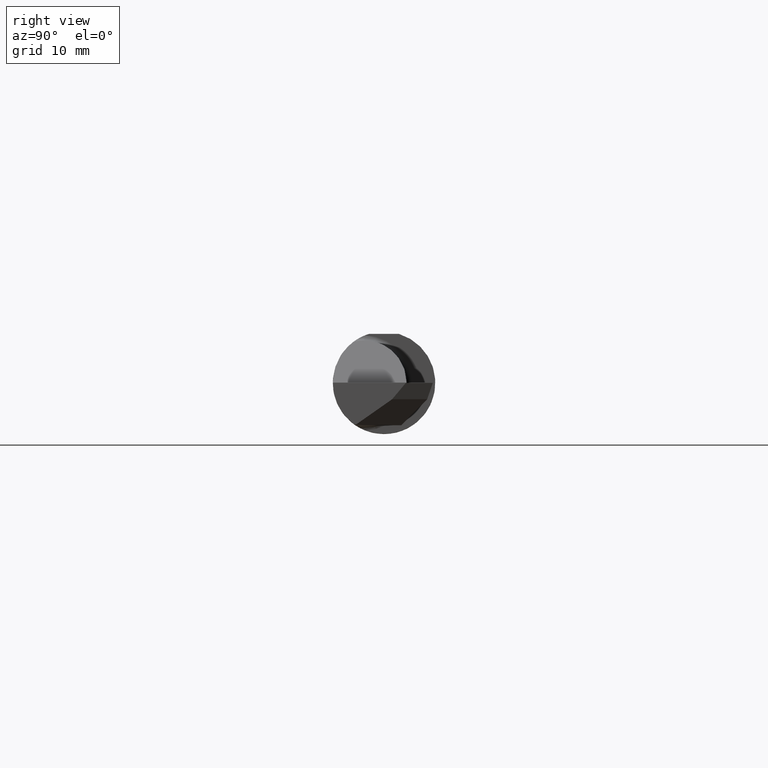
[diagram: clean part render]
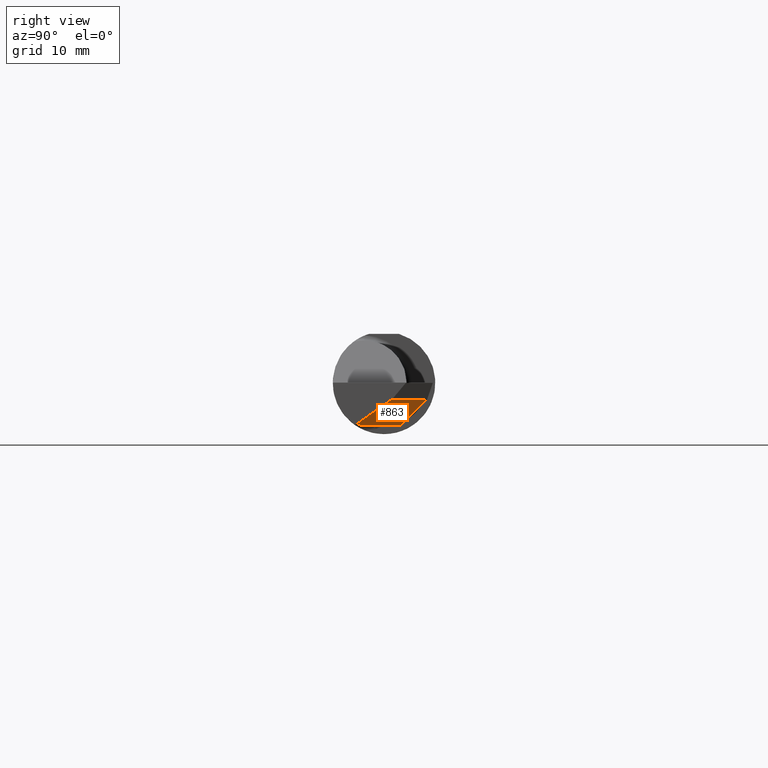
[diagram: same view with one face highlighted and labeled with its STEP entity id]
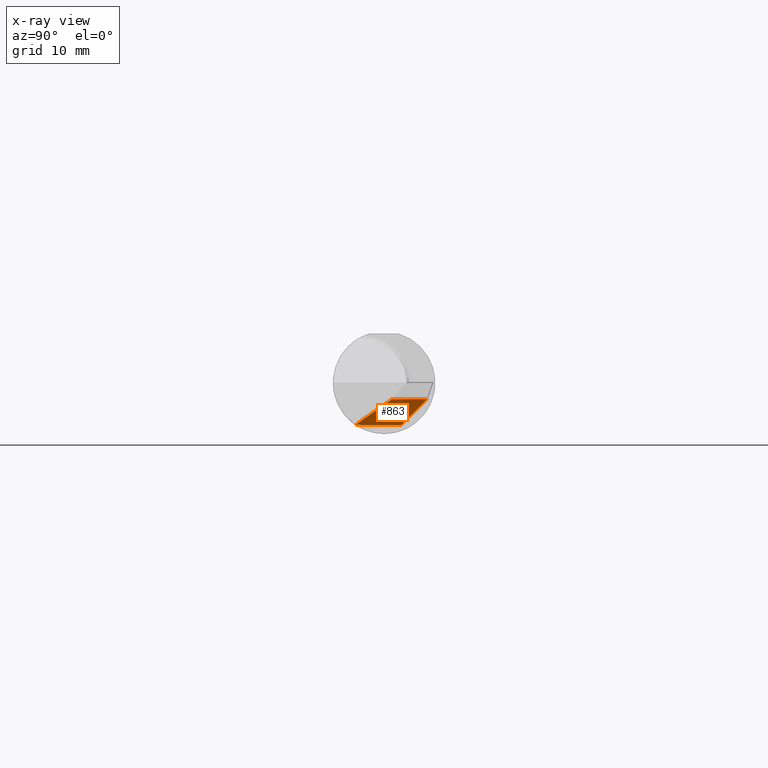
[diagram: x-ray of the same camera — body ghosted, the highlighted face saturated]
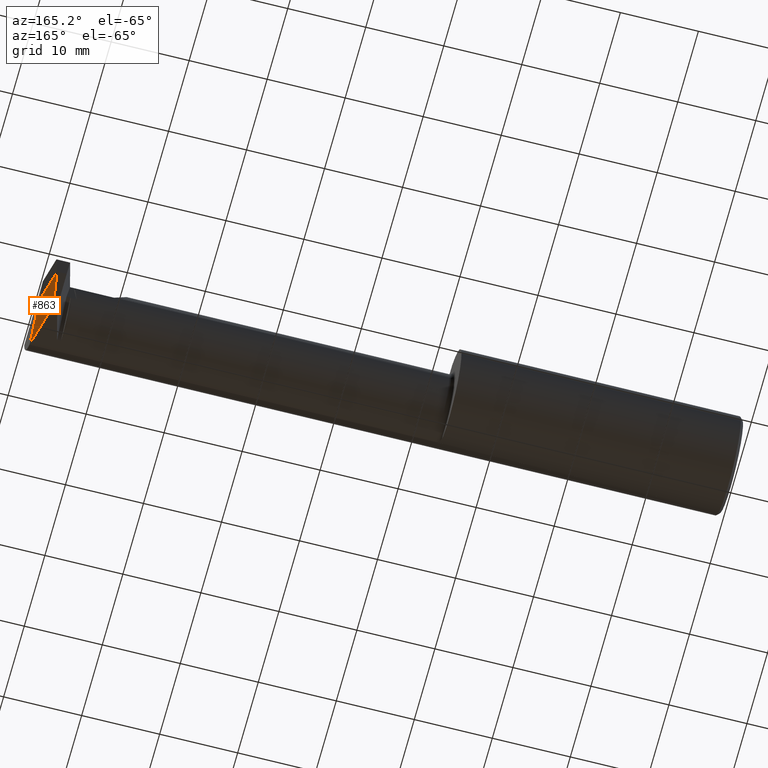
[diagram: same view with one face highlighted and labeled with its STEP entity id]
A machine part, right view. The second image highlights one B-rep face of the part: STEP entity #863.
The next image is the same camera in x-ray: the body ghosted, the highlighted face saturated — about 0% of this face is hidden behind the body in this view.
A second angle (auxiliary view) of the same face is appended — the face is thin or edge-on in the first view.
In plain terms, the highlighted planar face has unit normal (0.9116, 0.2358, -0.3367).
Its self-contained STEP definition (entity closure, byte-faithful):
#1 = CARTESIAN_POINT ( 'NONE',  ( 3.435081469452306191, 0.8665721776455815872, 0.3232974061439807811 ) ) ;
#10 = ORIENTED_EDGE ( 'NONE', *, *, #611, .F. ) ;
#28 = CARTESIAN_POINT ( 'NONE',  ( 3.500000000000000000, -0.1363579360798589379, -0.2031947907469819348 ) ) ;
#38 = CARTESIAN_POINT ( 'NONE',  ( 3.488377121087911537, -0.09685000000000003328, -0.2069999999999999341 ) ) ;
#49 = DIRECTION ( 'NONE',  ( -0.000000000000000000, 0.8191520442889890230, 0.5735764363510500452 ) ) ;
#63 = CARTESIAN_POINT ( 'NONE',  ( 3.488377121087911537, -0.09685000000000003328, -0.2069999999999999341 ) ) ;
#124 =( BOUNDED_CURVE ( )  B_SPLINE_CURVE ( 3, ( #38, #688, #526, #28 ),
 .UNSPECIFIED., .F., .F. ) 
 B_SPLINE_CURVE_WITH_KNOTS ( ( 4, 4 ),
 ( 0.6108652381980200774, 0.8029030024378224217 ),
 .UNSPECIFIED. ) 
 CURVE ( )  GEOMETRIC_REPRESENTATION_ITEM ( )  RATIONAL_B_SPLINE_CURVE ( ( 1.000000000000000000, 0.9969291518527050311, 0.9969291518527050311, 1.000000000000000000 ) ) 
 REPRESENTATION_ITEM ( '' )  );
#127 = LINE ( 'NONE', #776, #504 ) ;
#131 = CARTESIAN_POINT ( 'NONE',  ( 3.463839195668919402, 0.2834708276858401432, -0.007132963250969018114 ) ) ;
#136 = DIRECTION ( 'NONE',  ( -0.3464677099351670120, 0.000000000000000000, -0.9380618987957461963 ) ) ;
#154 = EDGE_CURVE ( 'NONE', #738, #530, #127, .T. ) ;
#201 = FACE_OUTER_BOUND ( 'NONE', #888, .T. ) ;
#209 = DIRECTION ( 'NONE',  ( -0.2503800040544218453, 0.9681476403781128504, 7.367790809985756574E-14 ) ) ;
#248 = VECTOR ( 'NONE', #49, 39.37007874015748143 ) ;
#259 = EDGE_CURVE ( 'NONE', #530, #546, #927, .T. ) ;
#313 = ORIENTED_EDGE ( 'NONE', *, *, #259, .T. ) ;
#317 = LINE ( 'NONE', #401, #248 ) ;
#331 = VERTEX_POINT ( 'NONE', #575 ) ;
#339 = DIRECTION ( 'NONE',  ( -0.2503800040544475469, 0.9681476403781061890, -5.547658068578852737E-16 ) ) ;
#401 = CARTESIAN_POINT ( 'NONE',  ( 3.500000000000000000, 0.05060993510442058502, -0.07227847794072529697 ) ) ;
#421 = AXIS2_PLACEMENT_3D ( 'NONE', #1, #582, #136 ) ;
#423 = ORIENTED_EDGE ( 'NONE', *, *, #154, .T. ) ;
#430 = CARTESIAN_POINT ( 'NONE',  ( 3.295463962035229066, 0.8304646351436201224, -0.07999999999992708777 ) ) ;
#504 = VECTOR ( 'NONE', #339, 39.37007874015748143 ) ;
#507 = LINE ( 'NONE', #430, #797 ) ;
#526 = CARTESIAN_POINT ( 'NONE',  ( 3.495695463954407334, -0.1233308849821257852, -0.2057276898443765045 ) ) ;
#530 = VERTEX_POINT ( 'NONE', #596 ) ;
#546 = VERTEX_POINT ( 'NONE', #821 ) ;
#575 = CARTESIAN_POINT ( 'NONE',  ( 3.500000000000000000, -0.1363579360798589379, -0.2031947907469819348 ) ) ;
#582 = DIRECTION ( 'NONE',  ( 0.9116190025285761944, 0.2357607042868725689, -0.3367011798954106516 ) ) ;
#596 = CARTESIAN_POINT ( 'NONE',  ( 3.441708597587969098, 0.08360379093681136187, -0.2070000000000000451 ) ) ;
#611 = EDGE_CURVE ( 'NONE', #738, #331, #124, .T. ) ;
#626 = EDGE_CURVE ( 'NONE', #331, #908, #317, .T. ) ;
#652 = PLANE ( 'NONE',  #421 ) ;
#688 = CARTESIAN_POINT ( 'NONE',  ( 3.491809236970778940, -0.1101210074274914935, -0.2070000000000000173 ) ) ;
#736 = CARTESIAN_POINT ( 'NONE',  ( 3.500000000000000000, 0.03958245876646967337, -0.07999999999998727573 ) ) ;
#738 = VERTEX_POINT ( 'NONE', #63 ) ;
#746 = ORIENTED_EDGE ( 'NONE', *, *, #626, .F. ) ;
#776 = CARTESIAN_POINT ( 'NONE',  ( 3.431712946219815485, 0.1222541069740922665, -0.2070000000000000728 ) ) ;
#797 = VECTOR ( 'NONE', #209, 39.37007874015748143 ) ;
#821 = CARTESIAN_POINT ( 'NONE',  ( 3.455770876200777053, 0.2106037909368357608, -0.07999999999997425837 ) ) ;
#836 = VECTOR ( 'NONE', #859, 39.37007874015748143 ) ;
#839 = EDGE_CURVE ( 'NONE', #908, #546, #507, .T. ) ;
#859 = DIRECTION ( 'NONE',  ( 0.07805664651022528600, 0.7049493456751224629, 0.7049493456751303455 ) ) ;
#863 = ADVANCED_FACE ( 'NONE', ( #201 ), #652, .T. ) ;
#888 = EDGE_LOOP ( 'NONE', ( #10, #423, #313, #907, #746 ) ) ;
#907 = ORIENTED_EDGE ( 'NONE', *, *, #839, .F. ) ;
#908 = VERTEX_POINT ( 'NONE', #736 ) ;
#927 = LINE ( 'NONE', #131, #836 ) ;